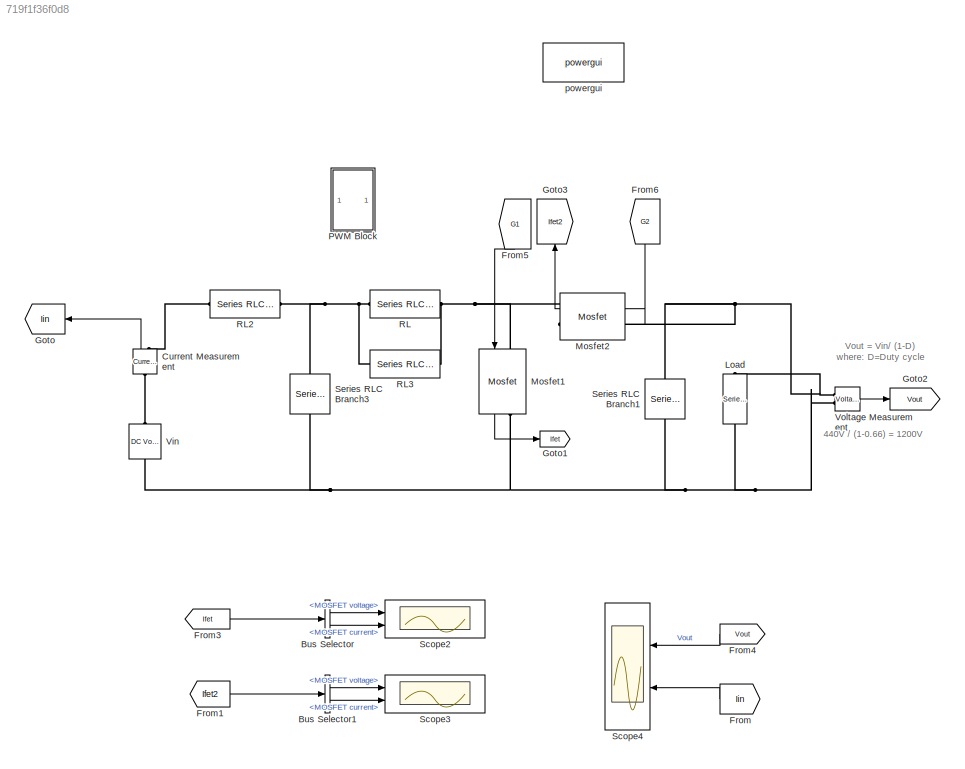
MODEL slx_719f1f36f0d8
KIND model
CONFIG AbsTol = auto
CONFIG EnableMultiTasking = on
CONFIG FixedStep = sampleTime
CONFIG InitFcn = boost_parameters
CONFIG MaxStep = 1e-4
CONFIG MinStep = auto
CONFIG RelTol = 1e-4
CONFIG SampleTimeConstraint = Unconstrained
CONFIG SolverName = FixedStepDiscrete
CONFIG StartTime = 0.0
CONFIG StopTime = 10
WORKSPACE source: mxarray member
WORKSPACE Phase1 = 0
BLOCK [BusSelector] Bus Selector
  OutputSignals = MOSFET voltage,MOSFET current
  Ports = [1, 2]
BLOCK [BusSelector] Bus Selector1
  OutputSignals = MOSFET voltage,MOSFET current
  Ports = [1, 2]
BLOCK [Reference] Current Measurement  REF=spsCurrentMeasurementLib/Current Measurement
  NameLocation = right
  Ports = [0, 1, 0, 0, 0, 1, 1]
  SourceBlock = spsCurrentMeasurementLib/Current Measurement
  SourceProductBaseCode = PS
  SourceType = Current Measurement
  UserDataPersistent = on
BLOCK [From] From
  GotoTag = Iin
BLOCK [From] From1
  GotoTag = Ifet2
BLOCK [From] From3
  GotoTag = Ifet
BLOCK [From] From4
  GotoTag = Vout
  NameLocation = top
BLOCK [From] From5
  GotoTag = G1
  NameLocation = left
  TagVisibility = global
BLOCK [From] From6
  GotoTag = G2
  NameLocation = left
  TagVisibility = global
BLOCK [Goto] Goto
  GotoTag = Iin
  NameLocation = top
BLOCK [Goto] Goto1
  GotoTag = Ifet
BLOCK [Goto] Goto2
  GotoTag = Vout
BLOCK [Goto] Goto3
  GotoTag = Ifet2
  NameLocation = right
BLOCK [Reference] Load  REF=spsSeriesRLCBranchLib/Series RLC Branch
  NameLocation = left
  Ports = [0, 0, 0, 0, 0, 1, 1]
  SourceBlock = spsSeriesRLCBranchLib/Series RLC Branch
  SourceProductBaseCode = PS
  SourceType = Series RLC Branch
BLOCK [Reference] Mosfet1  REF=spsMosfetLib/Mosfet
  NameLocation = left
  Ports = [1, 1, 0, 0, 0, 1, 1]
  SourceBlock = spsMosfetLib/Mosfet
  SourceProductBaseCode = PS
  SourceType = Mosfet
BLOCK [Reference] Mosfet2  REF=spsMosfetLib/Mosfet
  NameLocation = top
  Ports = [1, 1, 0, 0, 0, 1, 1]
  SourceBlock = spsMosfetLib/Mosfet
  SourceProductBaseCode = PS
  SourceType = Mosfet
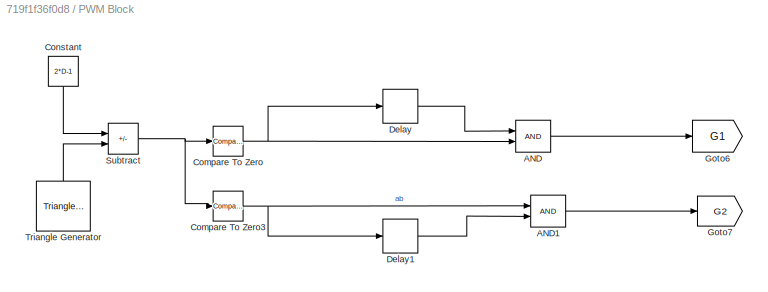
BLOCK [SubSystem] PWM Block
  Ports = []
  RequestExecContextInheritance = off
BLOCK [Logic] PWM Block/AND
  AllPortsSameDT = off
  IconShape = distinctive
  OutDataTypeStr = boolean
  Ports = [2, 1]
BLOCK [Logic] PWM Block/AND1
  AllPortsSameDT = off
  IconShape = distinctive
  OutDataTypeStr = boolean
  Ports = [2, 1]
BLOCK [Reference] PWM Block/Compare To Zero  REF=simulink/Logic and Bit
Operations/Compare
To Zero
  Ports = [1, 1]
  SourceBlock = simulink/Logic and Bit\nOperations/Compare\nTo Zero
  SourceProductBaseCode = SL
  SourceType = Compare To Zero
BLOCK [Reference] PWM Block/Compare To Zero3  REF=simulink/Logic and Bit
Operations/Compare
To Zero
  Ports = [1, 1]
  SourceBlock = simulink/Logic and Bit\nOperations/Compare\nTo Zero
  SourceProductBaseCode = SL
  SourceType = Compare To Zero
BLOCK [Constant] PWM Block/Constant
  NameLocation = left
  Value = 2*D-1
BLOCK [Delay] PWM Block/Delay
  InputPortMap = u0
  Ports = [1, 1]
BLOCK [Delay] PWM Block/Delay1
  InputPortMap = u0
  Ports = [1, 1]
BLOCK [Goto] PWM Block/Goto6
  GotoTag = G1
  TagVisibility = global
BLOCK [Goto] PWM Block/Goto7
  GotoTag = G2
  TagVisibility = global
BLOCK [Sum] PWM Block/Subtract
  IconShape = rectangular
  Inputs = +-
  Ports = [2, 1]
BLOCK [Reference] PWM Block/Triangle Generator  REF=spsTriangleGeneratorLib/Triangle
Generator
  NameLocation = right
  Ports = [0, 1]
  SourceBlock = spsTriangleGeneratorLib/Triangle\nGenerator
  SourceProductBaseCode = PS
  SourceType = Triangle Generator
BLOCK [Reference] RL  REF=spsSeriesRLCBranchLib/Series RLC Branch
  Ports = [0, 0, 0, 0, 0, 1, 1]
  SourceBlock = spsSeriesRLCBranchLib/Series RLC Branch
  SourceProductBaseCode = PS
  SourceType = Series RLC Branch
BLOCK [Reference] RL2  REF=spsSeriesRLCBranchLib/Series RLC Branch
  Ports = [0, 0, 0, 0, 0, 1, 1]
  SourceBlock = spsSeriesRLCBranchLib/Series RLC Branch
  SourceProductBaseCode = PS
  SourceType = Series RLC Branch
BLOCK [Reference] RL3  REF=spsSeriesRLCBranchLib/Series RLC Branch
  Ports = [0, 0, 0, 0, 0, 1, 1]
  SourceBlock = spsSeriesRLCBranchLib/Series RLC Branch
  SourceProductBaseCode = PS
  SourceType = Series RLC Branch
BLOCK [Scope] Scope2
  Floating = off
  NameLocation = top
  NumInputPorts = 2
  Ports = [2]
  ScopeSpecificationString = Simulink.scopes.TimeScopeBlockCfg('CurrentConfiguration', extmgr.ConfigurationSet(extmgr.Configuration('Core','General UI',true),extmgr.Configuration('Core','Source UI',true),extmgr.Configuration('Sources','WiredSimulink',true,'DataLoggingVariableName','ScopeData2'),extmgr.Configuration('Visuals','Time Domain',true,'SerializedDisplays',{struct('MinYLimReal','-259.21123','MaxYLimReal','2282.88008',...<+2087ch>
BLOCK [Scope] Scope3
  Floating = off
  NameLocation = top
  NumInputPorts = 2
  Ports = [2]
  ScopeSpecificationString = Simulink.scopes.TimeScopeBlockCfg('CurrentConfiguration', extmgr.ConfigurationSet(extmgr.Configuration('Core','General UI',true),extmgr.Configuration('Core','Source UI',true),extmgr.Configuration('Sources','WiredSimulink',true,'DataLoggingVariableName','ScopeData3'),extmgr.Configuration('Visuals','Time Domain',true,'SerializedDisplays',{struct('MinYLimReal','-298.56302','MaxYLimReal','2598.30506',...<+2090ch>
BLOCK [Scope] Scope4
  Floating = off
  NameLocation = top
  NumInputPorts = 2
  Ports = [2]
  ScopeSpecificationString = Simulink.scopes.TimeScopeBlockCfg('CurrentConfiguration', extmgr.ConfigurationSet(extmgr.Configuration('Core','General UI',true),extmgr.Configuration('Core','Source UI',true),extmgr.Configuration('Sources','WiredSimulink',true),extmgr.Configuration('Visuals','Time Domain',true,'SerializedDisplays',{struct('MinYLimReal','1170.77535','MaxYLimReal','1191.52199','YLabelReal','','MinYLimMag','1170.7753...<+2054ch>
BLOCK [Reference] Series RLC Branch1  REF=spsSeriesRLCBranchLib/Series RLC Branch
  NameLocation = left
  Ports = [0, 0, 0, 0, 0, 1, 1]
  SourceBlock = spsSeriesRLCBranchLib/Series RLC Branch
  SourceProductBaseCode = PS
  SourceType = Series RLC Branch
BLOCK [Reference] Series RLC Branch3  REF=spsSeriesRLCBranchLib/Series RLC Branch
  NameLocation = left
  Ports = [0, 0, 0, 0, 0, 1, 1]
  SourceBlock = spsSeriesRLCBranchLib/Series RLC Branch
  SourceProductBaseCode = PS
  SourceType = Series RLC Branch
BLOCK [Reference] Vin   REF=spsDCVoltageSourceLib/DC Voltage Source
  NameLocation = left
  Ports = [0, 0, 0, 0, 0, 1, 1]
  SourceBlock = spsDCVoltageSourceLib/DC Voltage Source
  SourceProductBaseCode = PS
  SourceType = DC Voltage Source
BLOCK [Reference] Voltage Measurement  REF=spsVoltageMeasurementLib/Voltage Measurement
  Ports = [0, 1, 0, 0, 0, 2]
  SourceBlock = spsVoltageMeasurementLib/Voltage Measurement
  SourceProductBaseCode = PS
  SourceType = Voltage Measurement
  UserDataPersistent = on
BLOCK [Reference] powergui  REF=spspowerguiLib/powergui
  Ports = []
  Priority = 1
  SourceBlock = spspowerguiLib/powergui
  SourceProductBaseCode = PS
  SourceType = PSB option menu block
ANNOTATION (root): 440V / (1-0.66) = 1200V
ANNOTATION (root): Vout = Vin/ (1-D) where: D=Duty cycle
LINE Bus Selector1:1 -> Scope3:1
LINE Bus Selector1:2 -> Scope3:2
LINE Bus Selector:1 -> Scope2:1
LINE Bus Selector:2 -> Scope2:2
LINE Current Measurement:1 -> Goto:1
LINE From1:1 -> Bus Selector1:1
LINE From3:1 -> Bus Selector:1
LINE From4:1 -> Scope4:1
LINE From5:1 -> Mosfet1:1
LINE From6:1 -> Mosfet2:1
LINE From:1 -> Scope4:2
LINE Mosfet1:1 -> Goto1:1
LINE Mosfet2:1 -> Goto3:1
LINE PWM Block/AND1:1 -> PWM Block/Goto7:1
LINE PWM Block/AND:1 -> PWM Block/Goto6:1
NET PWM Block/Compare To Zero3:1 -> PWM Block/AND1:1, PWM Block/Delay1:1
NET PWM Block/Compare To Zero:1 -> PWM Block/AND:2, PWM Block/Delay:1
LINE PWM Block/Constant:1 -> PWM Block/Subtract:1
LINE PWM Block/Delay1:1 -> PWM Block/AND1:2
LINE PWM Block/Delay:1 -> PWM Block/AND:1
NET PWM Block/Subtract:1 -> PWM Block/Compare To Zero3:1, PWM Block/Compare To Zero:1
LINE PWM Block/Triangle Generator:1 -> PWM Block/Subtract:2
LINE Voltage Measurement:1 -> Goto2:1
PLINE Current Measurement:LConn1 -- Vin :RConn1
PLINE Current Measurement:RConn1 -- RL2:LConn1
PNET net1: Load:LConn1 -- Mosfet2:LConn1 -- Series RLC Branch1:LConn1 -- Voltage Measurement:LConn1
PNET net2: Load:RConn1 -- Mosfet1:RConn1 -- Series RLC Branch1:RConn1 -- Series RLC Branch3:RConn1 -- Vin :LConn1 -- Voltage Measurement:LConn2
PNET net3: Mosfet1:LConn1 -- Mosfet2:RConn1 -- RL3:RConn1 -- RL:RConn1
PNET net4: RL2:RConn1 -- RL3:LConn1 -- RL:LConn1 -- Series RLC Branch3:LConn1
note: NET lines group one-source signal fan-out (src -> all destinations, sorted); 1:1 wires keep LINE; PNET lines group multi-terminal physical nets as a canonical sorted terminal list (undirected conserving connections); 2-terminal nets keep the pairwise PLINE form
